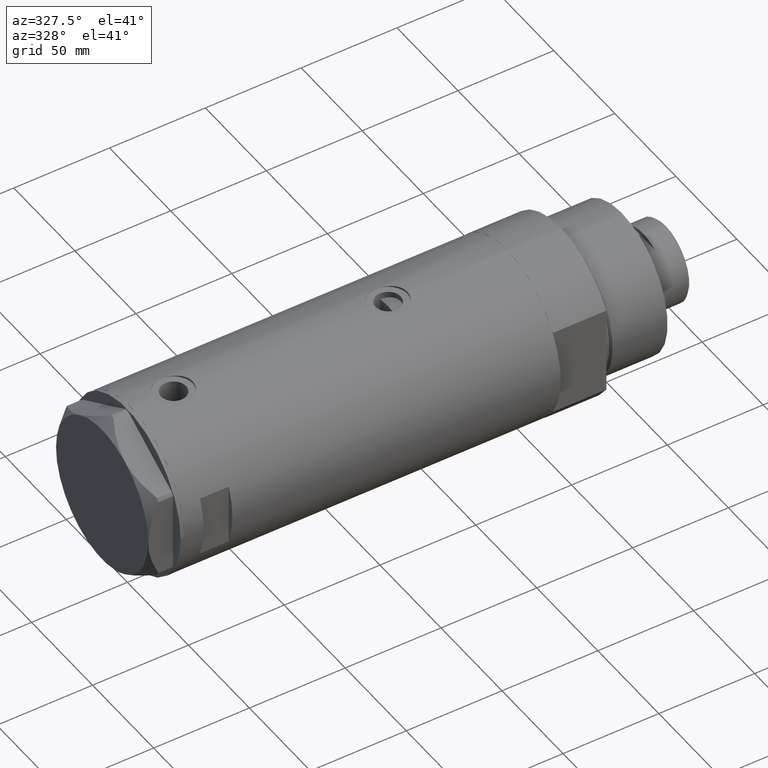
[diagram: clean part render]
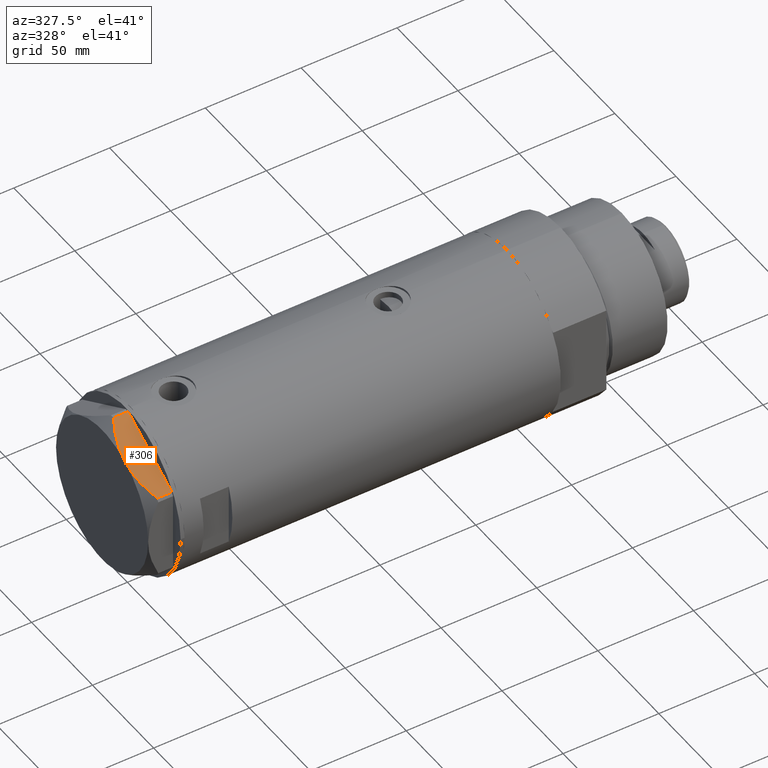
[diagram: same view with one face highlighted and labeled with its STEP entity id]
A machine part, auxiliary view. The second image highlights one B-rep face of the part: STEP entity #306.
In plain terms, the highlighted planar face has unit normal (-0, 0.5, -0.866).
Its self-contained STEP definition (entity closure, byte-faithful):
#145 = CARTESIAN_POINT ( 'NONE',  ( -3.804046002727119014, -41.39367834013252434, 9.210778219601836625 ) ) ;
#195 = CARTESIAN_POINT ( 'NONE',  ( -36.78005154776141694, -22.35497266190838772, 0.000000000000000000 ) ) ;
#206 = CARTESIAN_POINT ( 'NONE',  ( -0.9699484522385920515, -43.02994532381674020, 0.000000000000000000 ) ) ;
#306 = ADVANCED_FACE ( 'NONE', ( #1901 ), #1248, .F. ) ;
#355 = CARTESIAN_POINT ( 'NONE',  ( -18.87499999999999645, -32.69245899286255508, 13.00000000000000000 ) ) ;
#360 = B_SPLINE_CURVE_WITH_KNOTS ( 'NONE', 3,
 ( #3828, #1355, #1018, #4228, #2425, #3852, #670, #3495, #2076, #2096 ),
 .UNSPECIFIED., .F., .F.,
 ( 4, 2, 2, 2, 4 ),
 ( 0.001231023567492484571, 0.01191187151549577550, 0.01725229548949741565, 0.01992250747649823572, 0.02259271946349905580 ),
 .UNSPECIFIED. ) ;
#372 = CARTESIAN_POINT ( 'NONE',  ( -0.9699484522420150912, -43.02994532381475068, 7.709124142618884790 ) ) ;
#472 = EDGE_CURVE ( 'NONE', #3357, #4251, #360, .T. ) ;
#497 = CARTESIAN_POINT ( 'NONE',  ( -36.78005154776141694, -22.35497266190838772, 13.00000000000000000 ) ) ;
#664 = DIRECTION ( 'NONE',  ( -0.8660254037844387076, 0.4999999999999998890, 0.000000000000000000 ) ) ;
#670 = CARTESIAN_POINT ( 'NONE',  ( -22.01686507582220997, -30.87850234557913609, 12.83692902789789869 ) ) ;
#821 = CARTESIAN_POINT ( 'NONE',  ( -0.9699484522420150912, -43.02994532381475068, 7.709124142618884790 ) ) ;
#949 = DIRECTION ( 'NONE',  ( 0.000000000000000000, 0.000000000000000000, 1.000000000000000000 ) ) ;
#969 = CARTESIAN_POINT ( 'NONE',  ( -37.74999999999999289, -21.79497266190838189, 13.00000000000000000 ) ) ;
#980 = ORIENTED_EDGE ( 'NONE', *, *, #3706, .T. ) ;
#1017 = EDGE_CURVE ( 'NONE', #4251, #4388, #2142, .T. ) ;
#1018 = CARTESIAN_POINT ( 'NONE',  ( -31.09047021924039811, -25.63985397350626272, 10.58681170757598977 ) ) ;
#1161 = CARTESIAN_POINT ( 'NONE',  ( -8.199247025946510448, -38.85610784623428060, 11.04644118613120085 ) ) ;
#1248 = PLANE ( 'NONE',  #1368 ) ;
#1266 = ORIENTED_EDGE ( 'NONE', *, *, #1017, .F. ) ;
#1291 = CARTESIAN_POINT ( 'NONE',  ( -0.9699484522385850571, -43.02994532381674020, 13.00000000000000000 ) ) ;
#1350 = DIRECTION ( 'NONE',  ( 0.4999999999999998890, 0.8660254037844387076, -0.000000000000000000 ) ) ;
#1355 = CARTESIAN_POINT ( 'NONE',  ( -33.96695484073207183, -23.97911480296823683, 9.269459228581803600 ) ) ;
#1368 = AXIS2_PLACEMENT_3D ( 'NONE', #969, #1350, #664 ) ;
#1392 = VERTEX_POINT ( 'NONE', #206 ) ;
#1483 = VECTOR ( 'NONE', #1941, 1000.000000000000227 ) ;
#1501 = CARTESIAN_POINT ( 'NONE',  ( -8.949419886525276979, -38.42299534324038746, 11.30742055474529195 ) ) ;
#1574 = CARTESIAN_POINT ( 'NONE',  ( -6.717640657183465258, -39.71151368207270593, 10.48240969891360663 ) ) ;
#1778 = ORIENTED_EDGE ( 'NONE', *, *, #2559, .T. ) ;
#1901 = FACE_OUTER_BOUND ( 'NONE', #3680, .T. ) ;
#1941 = DIRECTION ( 'NONE',  ( 0.8660254037844385966, -0.4999999999999998890, 0.000000000000000000 ) ) ;
#1968 = CARTESIAN_POINT ( 'NONE',  ( -15.78316139395997908, -34.47753284435064813, 12.87183830165164800 ) ) ;
#2076 = CARTESIAN_POINT ( 'NONE',  ( -19.65653997226998584, -32.24123667949004357, 13.00000000000000178 ) ) ;
#2083 = ORIENTED_EDGE ( 'NONE', *, *, #3827, .T. ) ;
#2096 = CARTESIAN_POINT ( 'NONE',  ( -18.87499999999999645, -32.69245899286255508, 13.00000000000000000 ) ) ;
#2142 = B_SPLINE_CURVE_WITH_KNOTS ( 'NONE', 3,
 ( #355, #2321, #1968, #4405, #4372, #1501, #1161, #1574, #3272, #145, #4002, #821 ),
 .UNSPECIFIED., .F., .F.,
 ( 4, 2, 2, 2, 2, 4 ),
 ( 0.02259271946349905580, 0.02789559809390664002, 0.03319847672431422425, 0.03584991603951802330, 0.03850135535472180848, 0.04380423398512939964 ),
 .UNSPECIFIED. ) ;
#2321 = CARTESIAN_POINT ( 'NONE',  ( -17.32290914057169928, -33.58855906836025440, 12.99999999999999822 ) ) ;
#2425 = CARTESIAN_POINT ( 'NONE',  ( -25.11263918036253884, -29.09115633297249204, 12.35956205105863326 ) ) ;
#2559 = EDGE_CURVE ( 'NONE', #3357, #2636, #4315, .T. ) ;
#2628 = LINE ( 'NONE', #3364, #1483 ) ;
#2636 = VERTEX_POINT ( 'NONE', #195 ) ;
#2968 = DIRECTION ( 'NONE',  ( -0.000000000000000000, 0.000000000000000000, -1.000000000000000000 ) ) ;
#3033 = VECTOR ( 'NONE', #2968, 1000.000000000000000 ) ;
#3061 = LINE ( 'NONE', #1291, #3654 ) ;
#3272 = CARTESIAN_POINT ( 'NONE',  ( -5.984301592053449248, -40.13490718873278951, 10.17879673963541087 ) ) ;
#3357 = VERTEX_POINT ( 'NONE', #3815 ) ;
#3364 = CARTESIAN_POINT ( 'NONE',  ( -37.74999999999999289, -21.79497266190838189, 0.000000000000000000 ) ) ;
#3441 = CARTESIAN_POINT ( 'NONE',  ( -18.87499999999999645, -32.69245899286255508, 13.00000000000000000 ) ) ;
#3495 = CARTESIAN_POINT ( 'NONE',  ( -20.44120046918716582, -31.78821273037243245, 12.96759879420491579 ) ) ;
#3654 = VECTOR ( 'NONE', #949, 1000.000000000000000 ) ;
#3680 = EDGE_LOOP ( 'NONE', ( #4004, #1778, #980, #2083, #1266 ) ) ;
#3706 = EDGE_CURVE ( 'NONE', #2636, #1392, #2628, .T. ) ;
#3815 = CARTESIAN_POINT ( 'NONE',  ( -36.78005154776155905, -22.35497266190830246, 7.709124142616896158 ) ) ;
#3827 = EDGE_CURVE ( 'NONE', #1392, #4388, #3061, .T. ) ;
#3828 = CARTESIAN_POINT ( 'NONE',  ( -36.78005154776155905, -22.35497266190830246, 7.709124142616896158 ) ) ;
#3852 = CARTESIAN_POINT ( 'NONE',  ( -22.79667224021351757, -30.42828046930181074, 12.73960743196720280 ) ) ;
#4002 = CARTESIAN_POINT ( 'NONE',  ( -2.376799045726867732, -42.21769975495670479, 8.489459328479822986 ) ) ;
#4004 = ORIENTED_EDGE ( 'NONE', *, *, #472, .F. ) ;
#4228 = CARTESIAN_POINT ( 'NONE',  ( -26.62598697109946855, -28.21742457861298803, 11.98878493998158312 ) ) ;
#4251 = VERTEX_POINT ( 'NONE', #3441 ) ;
#4315 = LINE ( 'NONE', #497, #3033 ) ;
#4372 = CARTESIAN_POINT ( 'NONE',  ( -11.20965750620535673, -37.11804654508558343, 12.01242981158399914 ) ) ;
#4388 = VERTEX_POINT ( 'NONE', #372 ) ;
#4405 = CARTESIAN_POINT ( 'NONE',  ( -12.72654504259227259, -36.24227111762220943, 12.37795492145981235 ) ) ;